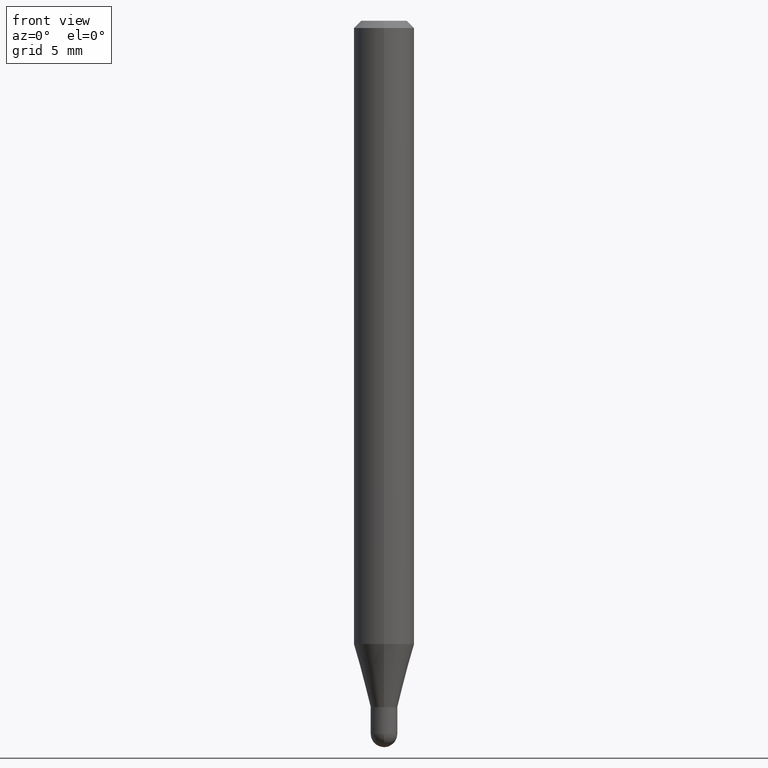
[diagram: clean part render]
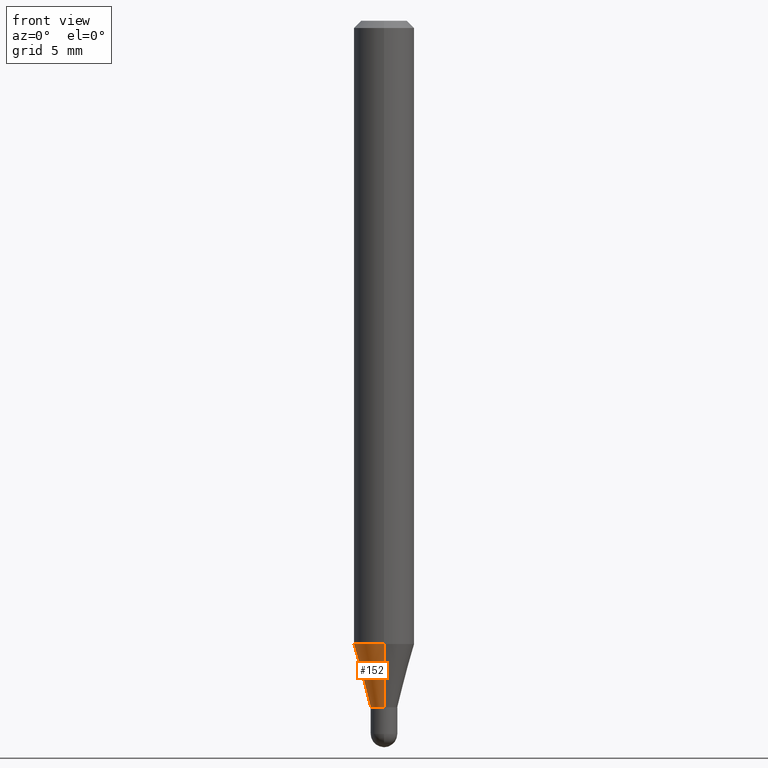
[diagram: same view with one face highlighted and labeled with its STEP entity id]
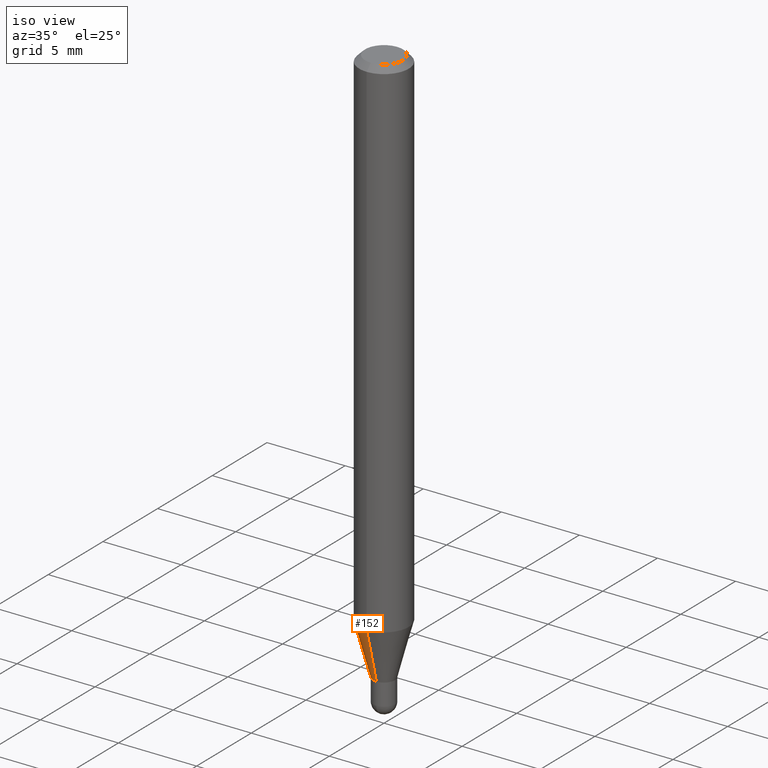
[diagram: same view with one face highlighted and labeled with its STEP entity id]
A machine part, front view. The second image highlights one B-rep face of the part: STEP entity #152.
A second angle (iso view) of the same face is appended — the face is thin or edge-on in the first view.
In plain terms, the highlighted conical surface has half-angle 15 deg.
Its self-contained STEP definition (entity closure, byte-faithful):
#3 = DIRECTION ( 'NONE',  ( -6.982962677686265922E-15, -1.000000000000000000, 0.000000000000000000 ) ) ;
#4 = DIRECTION ( 'NONE',  ( -1.807323732225381810E-15, -0.2588190451025255689, 0.9659258262890669799 ) ) ;
#8 = VECTOR ( 'NONE', #4, 39.37007874015748854 ) ;
#22 = VERTEX_POINT ( 'NONE', #148 ) ;
#29 = DIRECTION ( 'NONE',  ( 1.839019923739652775E-15, 0.2588190451025323413, 0.9659258262890650926 ) ) ;
#58 = CONICAL_SURFACE ( 'NONE', #403, 0.02750000000000019443, 0.2617993877991579010 ) ;
#70 = DIRECTION ( 'NONE',  ( -2.445463999314943664E-29, 3.491488222554852049E-15, 1.000000000000000000 ) ) ;
#91 = DIRECTION ( 'NONE',  ( -6.982962677686265922E-15, -1.000000000000000000, 0.000000000000000000 ) ) ;
#94 = CIRCLE ( 'NONE', #322, 0.02750000000000019443 ) ;
#100 = VERTEX_POINT ( 'NONE', #380 ) ;
#102 = CIRCLE ( 'NONE', #333, 0.06250000000000000000 ) ;
#131 = CARTESIAN_POINT ( 'NONE',  ( -4.364351673553603122E-16, -0.06250000000000451028, -1.286878221735094252 ) ) ;
#138 = VERTEX_POINT ( 'NONE', #238 ) ;
#148 = CARTESIAN_POINT ( 'NONE',  ( 3.197442310920788942E-16, 0.02749999999999524700, -1.417500000000000204 ) ) ;
#152 = ADVANCED_FACE ( 'NONE', ( #200 ), #58, .T. ) ;
#182 = ORIENTED_EDGE ( 'NONE', *, *, #345, .F. ) ;
#197 = CARTESIAN_POINT ( 'NONE',  ( 1.953992523340635685E-16, 0.02749999999999524700, -1.417500000000000204 ) ) ;
#200 = FACE_OUTER_BOUND ( 'NONE', #412, .T. ) ;
#221 = ORIENTED_EDGE ( 'NONE', *, *, #473, .F. ) ;
#230 = ORIENTED_EDGE ( 'NONE', *, *, #283, .T. ) ;
#235 = DIRECTION ( 'NONE',  ( -6.982962677686265922E-15, -1.000000000000000000, 4.370956789862821150E-15 ) ) ;
#236 = CARTESIAN_POINT ( 'NONE',  ( -1.920314736363389904E-16, -0.02750000000000514186, -1.417500000000000204 ) ) ;
#238 = CARTESIAN_POINT ( 'NONE',  ( 4.440892098500938748E-16, 0.06249999999999548972, -1.286878221735094918 ) ) ;
#275 = CARTESIAN_POINT ( 'NONE',  ( 3.466445219028933028E-29, -4.949184555471503402E-15, -1.417500000000000204 ) ) ;
#283 = EDGE_CURVE ( 'NONE', #100, #430, #475, .T. ) ;
#322 = AXIS2_PLACEMENT_3D ( 'NONE', #406, #442, #91 ) ;
#333 = AXIS2_PLACEMENT_3D ( 'NONE', #427, #70, #235 ) ;
#335 = ORIENTED_EDGE ( 'NONE', *, *, #439, .T. ) ;
#341 = LINE ( 'NONE', #197, #357 ) ;
#345 = EDGE_CURVE ( 'NONE', #138, #430, #102, .T. ) ;
#353 = DIRECTION ( 'NONE',  ( -2.445463999314943664E-29, 3.491488222554852049E-15, 1.000000000000000000 ) ) ;
#357 = VECTOR ( 'NONE', #29, 39.37007874015748143 ) ;
#380 = CARTESIAN_POINT ( 'NONE',  ( -1.920314736363389904E-16, -0.02750000000000514186, -1.417500000000000204 ) ) ;
#403 = AXIS2_PLACEMENT_3D ( 'NONE', #275, #353, #3 ) ;
#406 = CARTESIAN_POINT ( 'NONE',  ( 3.466445219028933028E-29, -4.949184555471503402E-15, -1.417500000000000204 ) ) ;
#412 = EDGE_LOOP ( 'NONE', ( #221, #335, #230, #182 ) ) ;
#427 = CARTESIAN_POINT ( 'NONE',  ( 3.147014362755607605E-29, -4.493120155050413636E-15, -1.286878221735094474 ) ) ;
#430 = VERTEX_POINT ( 'NONE', #131 ) ;
#439 = EDGE_CURVE ( 'NONE', #22, #100, #94, .T. ) ;
#442 = DIRECTION ( 'NONE',  ( -2.445463999314943664E-29, 3.491488222554852049E-15, 1.000000000000000000 ) ) ;
#473 = EDGE_CURVE ( 'NONE', #22, #138, #341, .T. ) ;
#475 = LINE ( 'NONE', #236, #8 ) ;